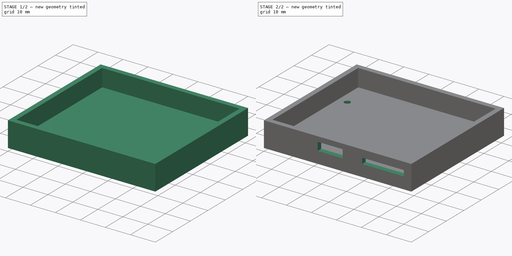
[diagram: build sequence overview — one tinted view per stage of 2, left to right]
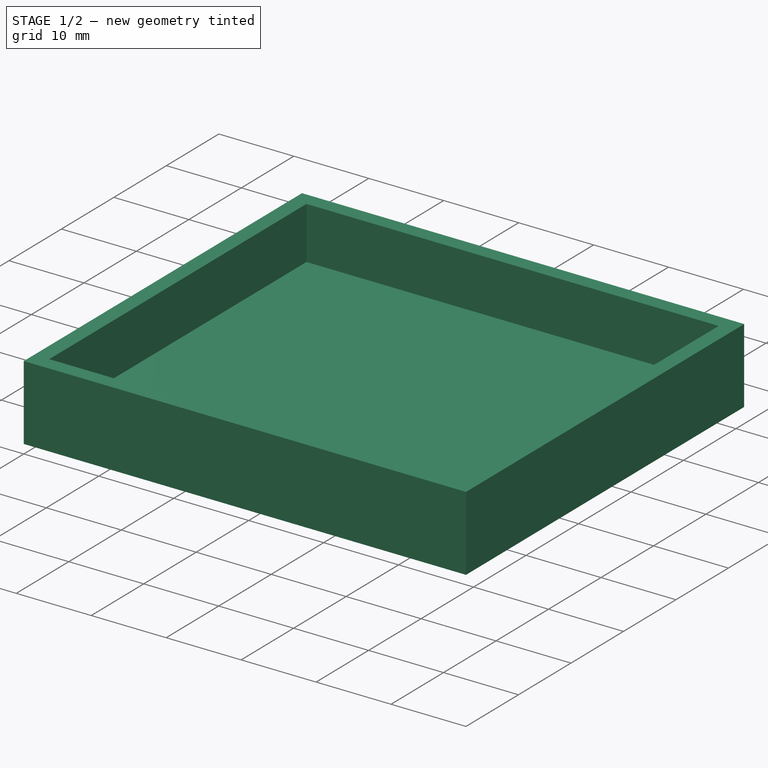
[diagram: stage 1 of 2 — iso view after this stage's code; geometry added in this stage tinted green]
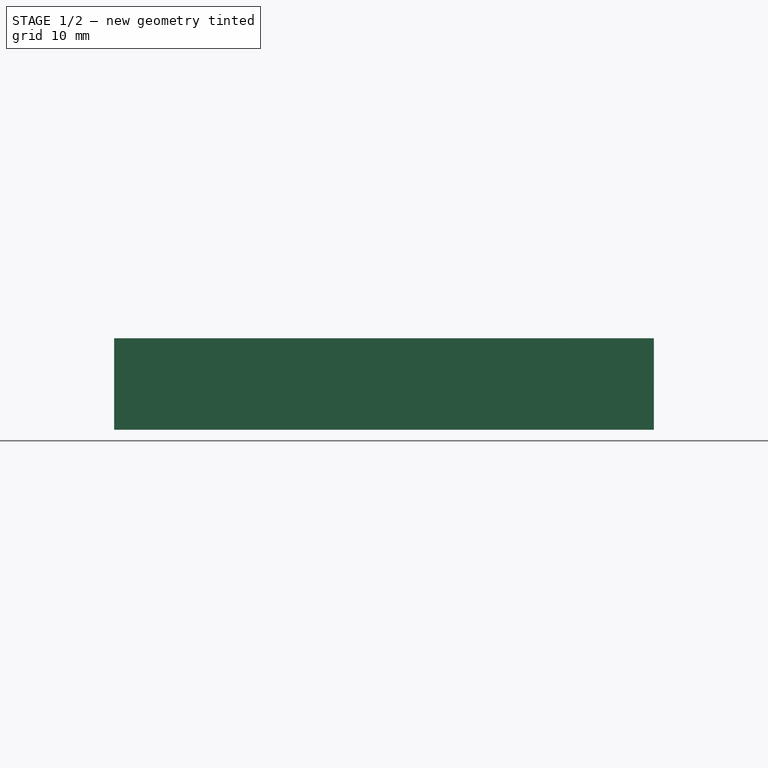
[diagram: stage 1 of 2 — front view after this stage's code; geometry added in this stage tinted green]
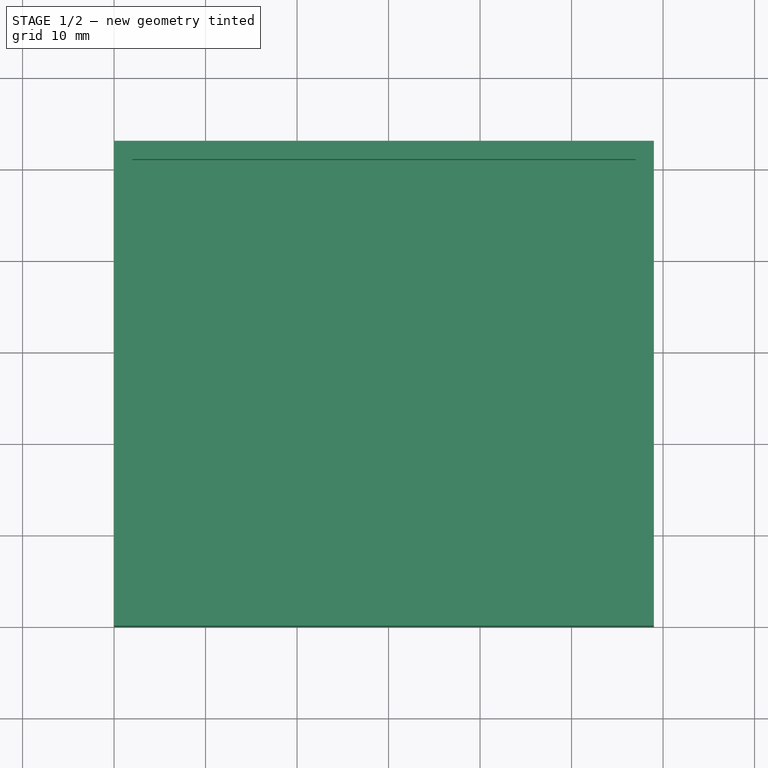
[diagram: stage 1 of 2 — top view after this stage's code; geometry added in this stage tinted green]
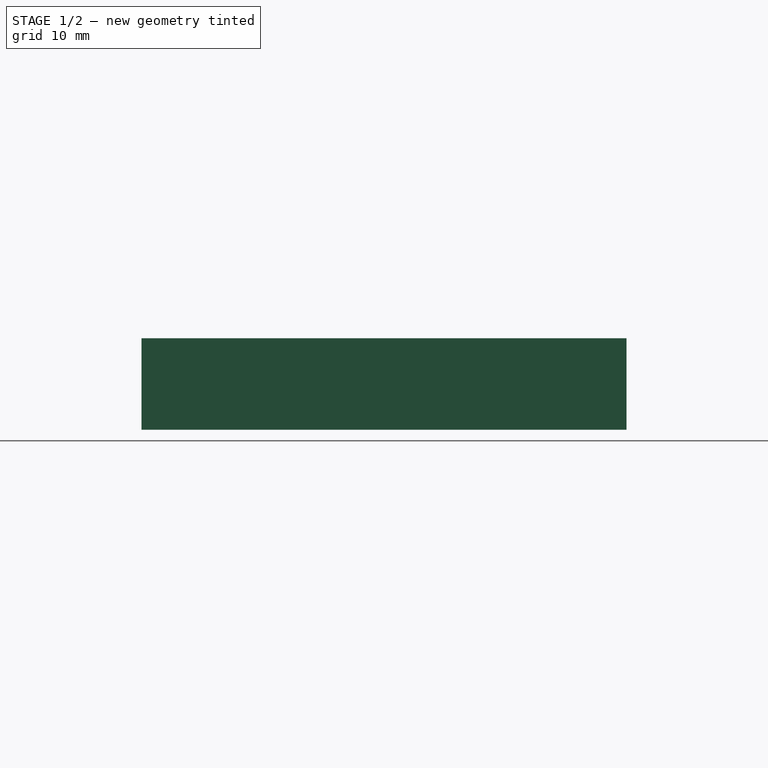
[diagram: stage 1 of 2 — right view after this stage's code; geometry added in this stage tinted green]
FCSTD DOCUMENT  (FreeCAD 0.19R24291 (Git))
Label: box-bottom-esp32
License: All rights reserved
LicenseURL: http://en.wikipedia.org/wiki/All_rights_reserved
objects: Sketcher::SketchObject×4, PartDesign::Pocket×2, PartDesign::Pad×1, PartDesign::Hole×1, PartDesign::Body×1
note: 13 computed .brp shape members not serialized (recipe doc carries the construction recipe); baked Part::Feature solids carry a one-line shape summary decoded from their .brp

FEATURE [Sketcher::SketchObject] Sketch
  FullyConstrained = true
  MapMode = 5
  Support = -> [XY_Plane]
  sketch-geometry (4):
    g0: LineSegment StartX=0 StartY=0 StartZ=0 EndX=59 EndY=0 EndZ=0
    g1: LineSegment StartX=59 StartY=0 StartZ=0 EndX=59 EndY=53 EndZ=0
    g2: LineSegment StartX=59 StartY=53 StartZ=0 EndX=0 EndY=53 EndZ=0
    g3: LineSegment StartX=0 StartY=53 StartZ=0 EndX=0 EndY=0 EndZ=0
  constraints (11):
    c: Coincident(g0,g1)
    c: Coincident(g1,g2)
    c: Coincident(g2,g3)
    c: Coincident(g3,g0)
    c: Horizontal(g0)
    c: Horizontal(g2)
    c: Vertical(g1)
    c: Vertical(g3)
    c: Coincident(g0,g-1)
    c: DistanceX(g2,g1) = 59
    c: DistanceY(g0,g1) = 53
FEATURE [PartDesign::Pad] Pad
  Direction = (1,1,1)
  Length = 10
  Length2 = 100
  Profile = -> Sketch
  Type = 0
FEATURE [Sketcher::SketchObject] Sketch001
  ExternalGeometry = -> [Pad]
  FullyConstrained = true
  MapMode = 5
  Placement = pos=(0,0,10) rot=(0,0,1;0rad)
  Support = -> [Pad]
  sketch-geometry (4):
    g0: LineSegment StartX=2 StartY=51 StartZ=0 EndX=57 EndY=51 EndZ=0
    g1: LineSegment StartX=57 StartY=51 StartZ=0 EndX=57 EndY=2 EndZ=0
    g2: LineSegment StartX=57 StartY=2 StartZ=0 EndX=2 EndY=2 EndZ=0
    g3: LineSegment StartX=2 StartY=2 StartZ=0 EndX=2 EndY=51 EndZ=0
  constraints (12):
    c: Coincident(g0,g1)
    c: Coincident(g1,g2)
    c: Coincident(g2,g3)
    c: Coincident(g3,g0)
    c: Horizontal(g0)
    c: Horizontal(g2)
    c: Vertical(g1)
    c: Vertical(g3)
    c: DistanceX(g-4,g0) = 2
    c: DistanceY(g0,g-4) = 2
    c: DistanceY(g-1,g2) = 2
    c: DistanceX(g0,g-4) = 2
FEATURE [PartDesign::Pocket] Pocket
  BaseFeature = -> Pad
  Length = 7
  Length2 = 100
  Profile = -> Sketch001
  Type = 0
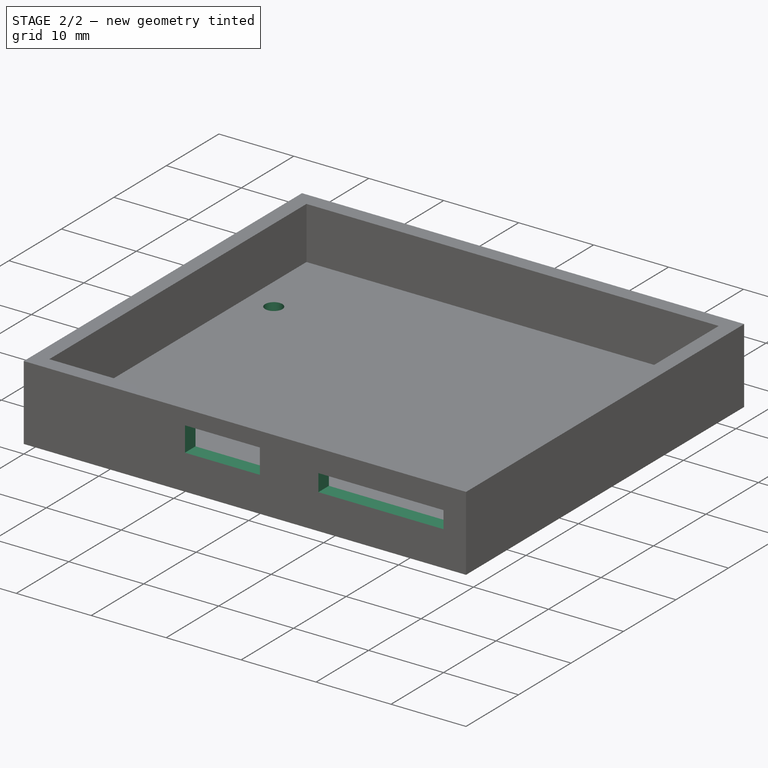
[diagram: stage 2 of 2 — iso view after this stage's code; geometry added in this stage tinted green]
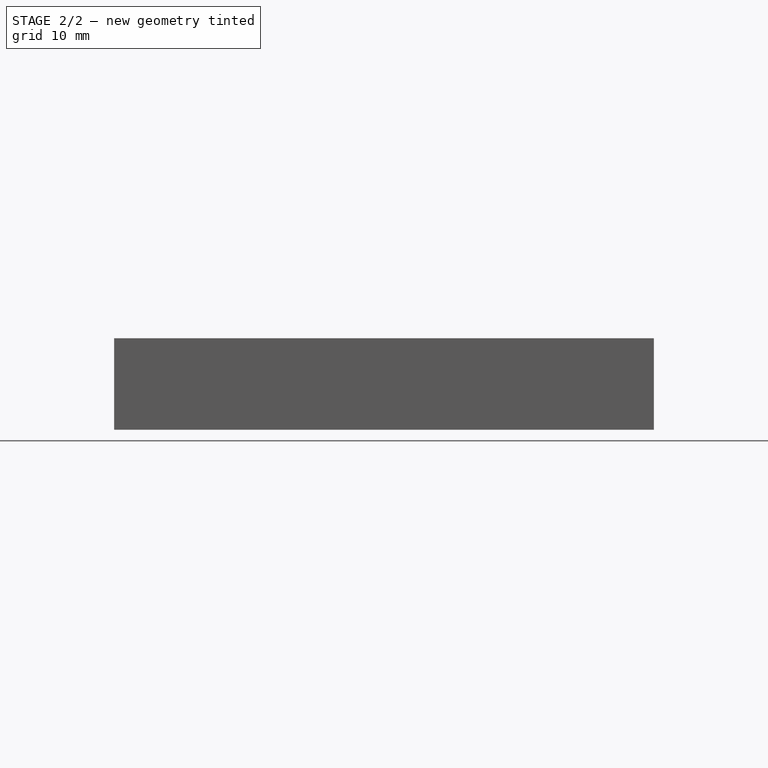
[diagram: stage 2 of 2 — front view after this stage's code; geometry added in this stage tinted green]
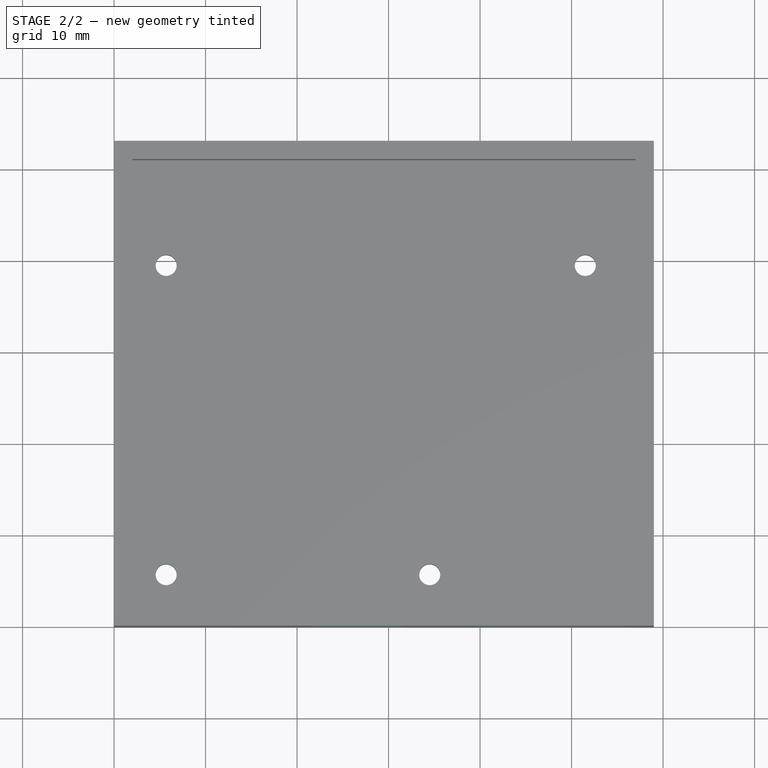
[diagram: stage 2 of 2 — top view after this stage's code; geometry added in this stage tinted green]
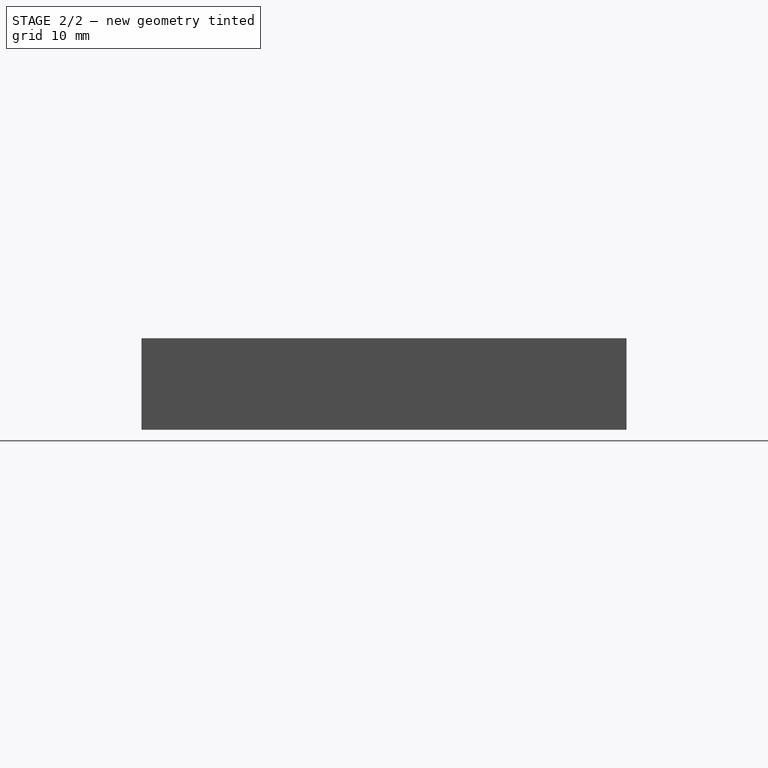
[diagram: stage 2 of 2 — right view after this stage's code; geometry added in this stage tinted green]
FEATURE [Sketcher::SketchObject] Sketch002
  ExternalGeometry = -> [Pocket]
  FullyConstrained = false
  MapMode = 5
  Placement = pos=(0,0,3) rot=(0,0,1;0rad)
  Support = -> [Pocket]
  sketch-geometry (9):
    g0: LineSegment StartX=2.09075 StartY=26.5 StartZ=0 EndX=57.4051 EndY=26.5 EndZ=0
    g1: LineSegment StartX=29.5 StartY=51 StartZ=0 EndX=29.5 EndY=2 EndZ=0
    g2: GeomPoint X=29.5 Y=51 Z=0
    g3: GeomPoint X=2 Y=26.5 Z=0
    g4: Circle CenterX=5.69 CenterY=39.5 CenterZ=0 NormalX=0 NormalY=0 NormalZ=1 AngleXU=0 Radius=1.2
    g5: Circle CenterX=34.5 CenterY=5.7 CenterZ=0 NormalX=0 NormalY=0 NormalZ=1 AngleXU=0 Radius=1.2
    g6: Circle CenterX=5.69 CenterY=5.7 CenterZ=0 NormalX=0 NormalY=0 NormalZ=1 AngleXU=0 Radius=1.2
    g7: Circle CenterX=51.5 CenterY=39.5 CenterZ=0 NormalX=0 NormalY=0 NormalZ=1 AngleXU=0 Radius=1.2
    g8: GeomPoint X=29.5 Y=26.5 Z=0
  constraints (21):
    c: Horizontal(g0)
    c: PointOnObject(g1,g-3)
    c: Vertical(g1)
    c: Symmetric(g-3,g-3,g2)
    c: Vertical(g1,g2)
    c: Symmetric(g-4,g-4,g3)
    c: Horizontal(g0,g3)
    c: Horizontal(g4,g7)
    c: Horizontal(g5,g6)
    c: Vertical(g4,g6)
    c: PointOnObject(g8,g0)
    c: Symmetric(g1,g1,g8)
    c: DistanceX(g8,g5) = 5
    c: DistanceX(g4,g8) = 23.81
    c: DistanceX(g8,g7) = 22
    c: DistanceY(g6,g8) = 20.8
    c: DistanceY(g8,g4) = 13
    c: Radius(g4) = 1.2
    c: Equal(g4,g7)
    c: Equal(g4,g5)
    c: Equal(g4,g6)
FEATURE [PartDesign::Hole] Hole
  BaseFeature = -> Pocket
  Depth = 25
  DepthType = 0
  Diameter = 2.3
  DrillForDepth = false
  DrillPoint = 1
  DrillPointAngle = 118
  HoleCutCountersinkAngle = 90
  HoleCutCustomValues = false
  HoleCutDepth = 0
  HoleCutDiameter = 6.1
  HoleCutType = 0
  ModelActualThread = false
  Profile = -> Sketch002
  Tapered = false
  TaperedAngle = 90
  ThreadAngle = 0
  ThreadClass = 0
  ThreadCutOffInner = 0
  ThreadCutOffOuter = 0
  ThreadDirection = 0
  ThreadFit = 0
  ThreadPitch = 0
  ThreadSize = 0
  ThreadType = 0
  Threaded = false
FEATURE [Sketcher::SketchObject] Sketch003
  ExternalGeometry = -> [Hole]
  FullyConstrained = true
  MapMode = 5
  Placement = pos=(0,0,0) rot=(1,0,0;1.5708rad)
  Support = -> [Hole]
  sketch-geometry (10):
    g0: GeomPoint X=29.5 Y=10 Z=0
    g1: GeomPoint X=0 Y=5 Z=0
    g2: LineSegment StartX=21.5 StartY=8 StartZ=0 EndX=31.5 EndY=8 EndZ=0
    g3: LineSegment StartX=31.5 StartY=8 StartZ=0 EndX=31.5 EndY=4.7 EndZ=0
    g4: LineSegment StartX=31.5 StartY=4.7 StartZ=0 EndX=21.5 EndY=4.7 EndZ=0
    g5: LineSegment StartX=21.5 StartY=4.7 StartZ=0 EndX=21.5 EndY=8 EndZ=0
    g6: LineSegment StartX=39.3 StartY=7 StartZ=0 EndX=56 EndY=7 EndZ=0
    g7: LineSegment StartX=56 StartY=7 StartZ=0 EndX=56 EndY=4.7 EndZ=0
    g8: LineSegment StartX=56 StartY=4.7 StartZ=0 EndX=39.3 EndY=4.7 EndZ=0
    g9: LineSegment StartX=39.3 StartY=4.7 StartZ=0 EndX=39.3 EndY=7 EndZ=0
  constraints (26):
    c: Symmetric(g-4,g-4,g0)
    c: Symmetric(g-3,g-3,g1)
    c: Coincident(g2,g3)
    c: Coincident(g3,g4)
    c: Coincident(g4,g5)
    c: Coincident(g5,g2)
    c: Horizontal(g2)
    c: Horizontal(g4)
    c: Vertical(g3)
    c: Vertical(g5)
    c: DistanceX(g2,g0) = 8
    c: DistanceX(g0,g2) = 2
    c: DistanceY(g-1,g4) = 4.7
    c: DistanceY(g4,g2) = 3.3
    c: Coincident(g6,g7)
    c: Coincident(g7,g8)
    c: Coincident(g8,g9)
    c: Coincident(g9,g6)
    c: Horizontal(g6)
    c: Horizontal(g8)
    c: Vertical(g7)
    c: Vertical(g9)
    c: DistanceX(g0,g6) = 9.8
    c: DistanceX(g0,g6) = 26.5
    c: Horizontal(g8,g3)
    c: DistanceY(g8,g6) = 2.3
FEATURE [PartDesign::Pocket] Pocket001
  BaseFeature = -> Hole
  Length = 5
  Length2 = 100
  Profile = -> Sketch003
  Type = 0
FEATURE [PartDesign::Body] Body
  Group = -> [Sketch,Pad,Sketch001,Pocket,Sketch002,Hole,Sketch003,Pocket001]
  Origin = -> Origin
  Tip = -> Pocket001
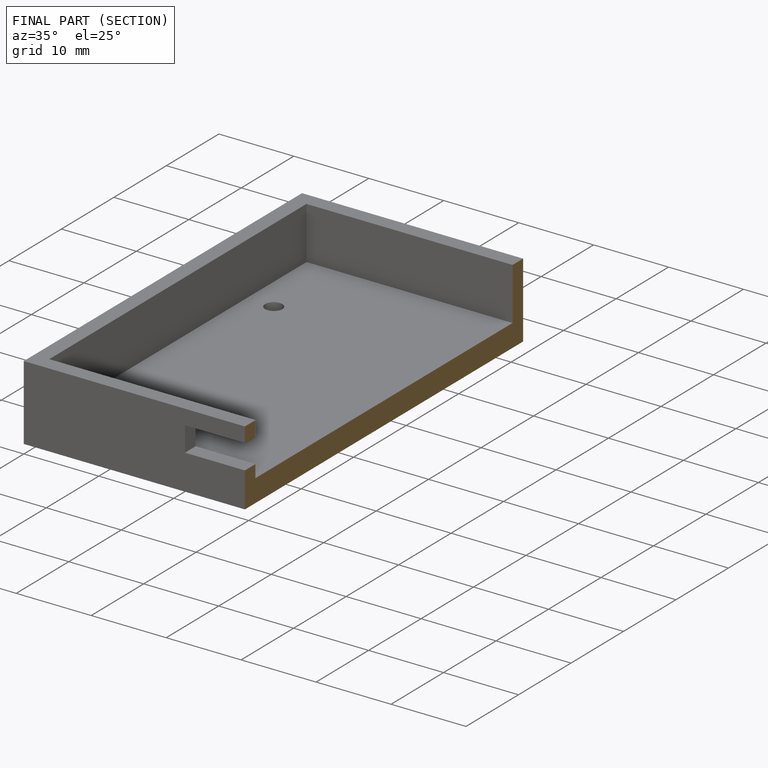
[diagram: finished part — half-section view (interior)]
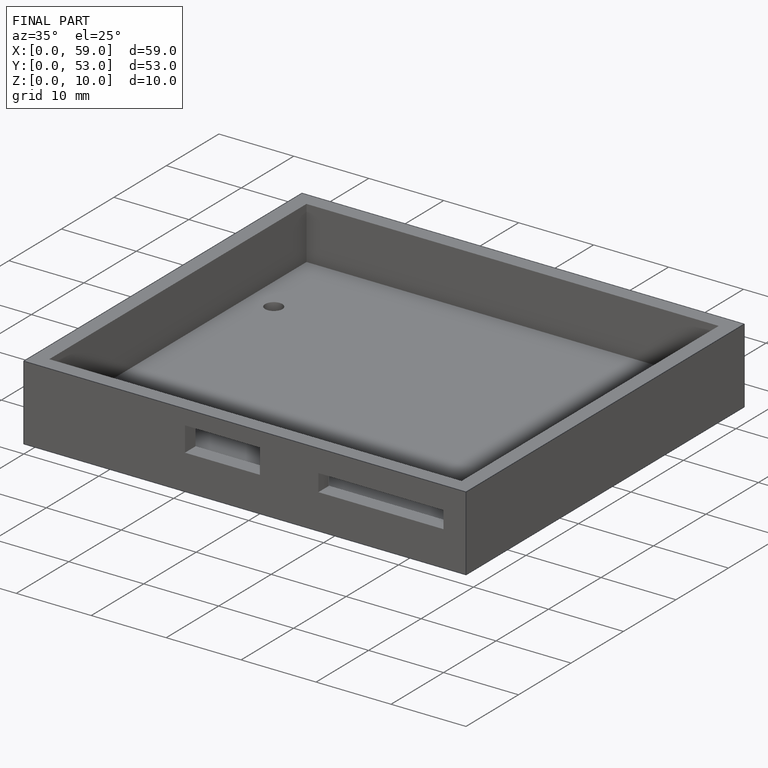
[diagram: finished part — iso view with bounding-box wireframe]
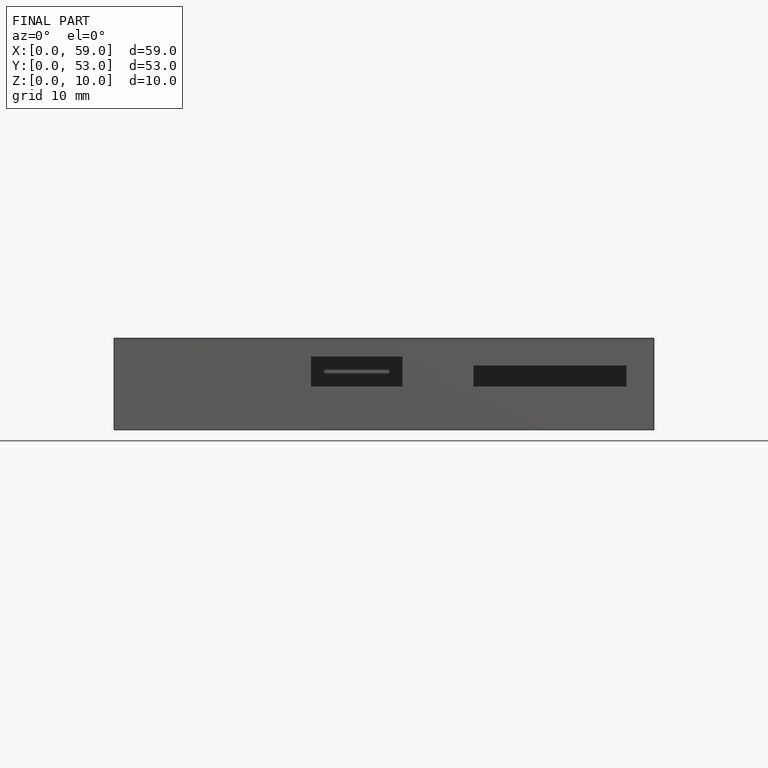
[diagram: finished part — front view with bounding-box wireframe]
